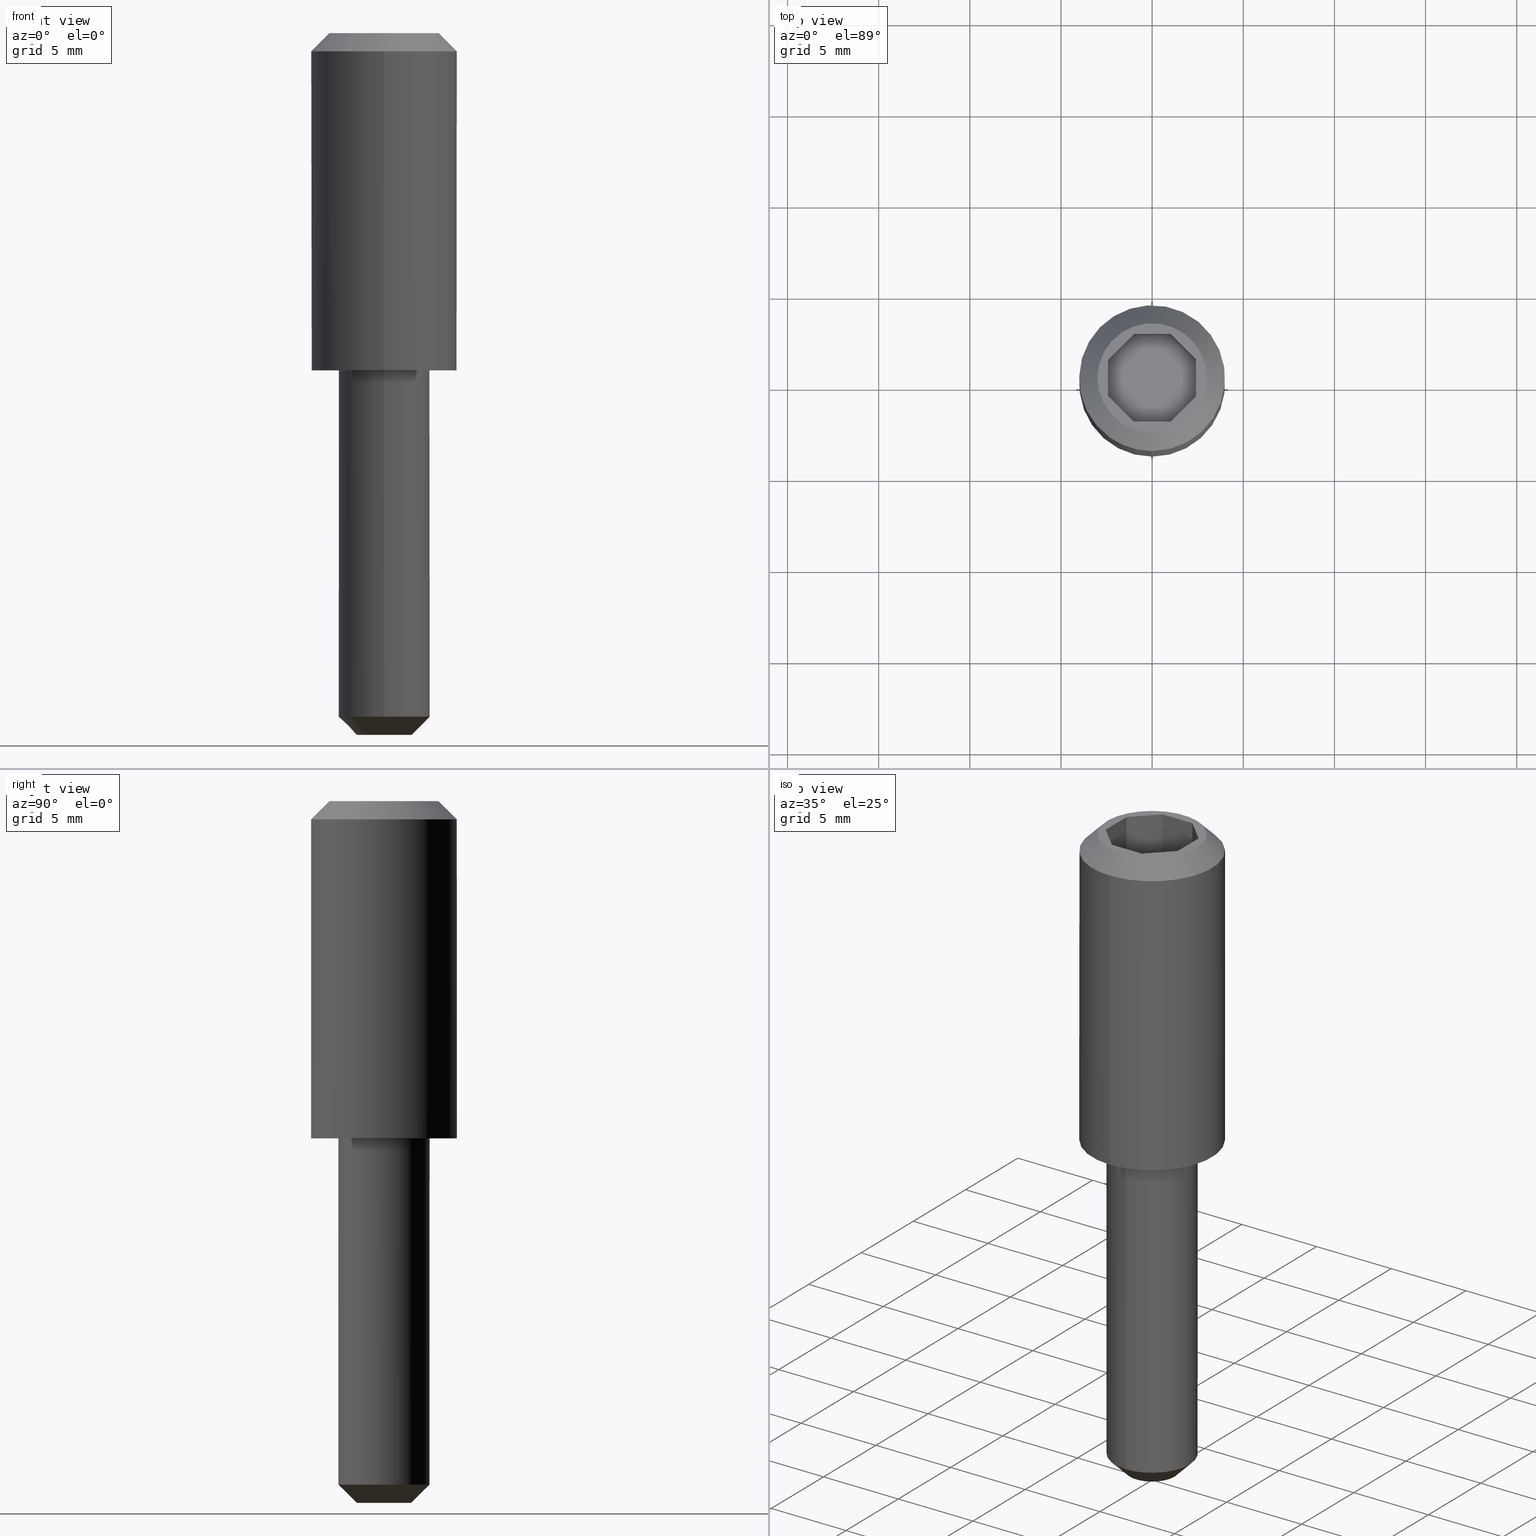
[diagram: canonical four-view strip — front | top / right | iso, engineering-drawing reading convention]
A machine part, canonical four-view strip (front | top / right | iso — engineering-drawing reading convention). The complete STEP part file that produces these views, byte-faithful:
ISO-10303-21;
HEADER;
/* Generated by software containing ST-Developer
 * from STEP Tools, Inc. (www.steptools.com) 
 */

FILE_DESCRIPTION(
/* description */ ('VITE M5 TESTA LUNGA D.8X38,5 AVP ZN'),
/* implementation_level */ '2;1');

FILE_NAME(
/* name */ 
'C:\\Users\\tecnico7\\Desktop\\NUOVI DISEGNI 3D\\CVIXX0000008.stp',
/* time_stamp */ '2022-12-05T09:24:14+01:00',
/* author */ ('tecnico7'),
/* organization */ (''),
/* preprocessor_version */ 'ST-DEVELOPER v18.1',
/* originating_system */ 'Autodesk Inventor 2022',
/* authorisation */ '');

FILE_SCHEMA (('AUTOMOTIVE_DESIGN { 1 0 10303 214 3 1 1 }'));
ENDSEC;

DATA;
#10=MECHANICAL_DESIGN_GEOMETRIC_PRESENTATION_REPRESENTATION('',(#13),#484);
#11=SHAPE_REPRESENTATION_RELATIONSHIP('SRR','None',#491,#12);
#12=ADVANCED_BREP_SHAPE_REPRESENTATION('',(#14),#483);
#13=STYLED_ITEM('',(#500),#14);
#14=MANIFOLD_SOLID_BREP('Importato1',#279);
#15=FACE_BOUND('',#52,.T.);
#16=FACE_BOUND('',#54,.T.);
#17=PLANE('',#314);
#18=PLANE('',#315);
#19=PLANE('',#316);
#20=PLANE('',#317);
#21=PLANE('',#318);
#22=PLANE('',#319);
#23=PLANE('',#320);
#24=PLANE('',#321);
#25=PLANE('',#322);
#26=PLANE('',#323);
#27=PLANE('',#324);
#28=PLANE('',#325);
#29=CYLINDRICAL_SURFACE('',#310,2.5);
#30=CYLINDRICAL_SURFACE('',#312,4.);
#31=FACE_OUTER_BOUND('',#47,.T.);
#32=FACE_OUTER_BOUND('',#48,.T.);
#33=FACE_OUTER_BOUND('',#49,.T.);
#34=FACE_OUTER_BOUND('',#50,.T.);
#35=FACE_OUTER_BOUND('',#51,.T.);
#36=FACE_OUTER_BOUND('',#53,.T.);
#37=FACE_OUTER_BOUND('',#55,.T.);
#38=FACE_OUTER_BOUND('',#56,.T.);
#39=FACE_OUTER_BOUND('',#57,.T.);
#40=FACE_OUTER_BOUND('',#58,.T.);
#41=FACE_OUTER_BOUND('',#59,.T.);
#42=FACE_OUTER_BOUND('',#60,.T.);
#43=FACE_OUTER_BOUND('',#61,.T.);
#44=FACE_OUTER_BOUND('',#62,.T.);
#45=FACE_OUTER_BOUND('',#63,.T.);
#46=FACE_OUTER_BOUND('',#64,.T.);
#47=EDGE_LOOP('',(#189,#190,#191,#192,#193));
#48=EDGE_LOOP('',(#194,#195,#196,#197,#198));
#49=EDGE_LOOP('',(#199,#200,#201,#202,#203));
#50=EDGE_LOOP('',(#204,#205,#206,#207,#208));
#51=EDGE_LOOP('',(#209));
#52=EDGE_LOOP('',(#210,#211,#212,#213,#214,#215,#216,#217));
#53=EDGE_LOOP('',(#218));
#54=EDGE_LOOP('',(#219));
#55=EDGE_LOOP('',(#220));
#56=EDGE_LOOP('',(#221,#222,#223,#224));
#57=EDGE_LOOP('',(#225,#226,#227,#228));
#58=EDGE_LOOP('',(#229,#230,#231,#232));
#59=EDGE_LOOP('',(#233,#234,#235,#236));
#60=EDGE_LOOP('',(#237,#238,#239,#240));
#61=EDGE_LOOP('',(#241,#242,#243,#244));
#62=EDGE_LOOP('',(#245,#246,#247,#248));
#63=EDGE_LOOP('',(#249,#250,#251,#252));
#64=EDGE_LOOP('',(#253,#254,#255,#256,#257,#258,#259,#260));
#65=LINE('',#410,#93);
#66=LINE('',#417,#94);
#67=LINE('',#424,#95);
#68=LINE('',#427,#96);
#69=LINE('',#432,#97);
#70=LINE('',#434,#98);
#71=LINE('',#436,#99);
#72=LINE('',#438,#100);
#73=LINE('',#440,#101);
#74=LINE('',#442,#102);
#75=LINE('',#444,#103);
#76=LINE('',#445,#104);
#77=LINE('',#450,#105);
#78=LINE('',#452,#106);
#79=LINE('',#453,#107);
#80=LINE('',#456,#108);
#81=LINE('',#457,#109);
#82=LINE('',#460,#110);
#83=LINE('',#461,#111);
#84=LINE('',#464,#112);
#85=LINE('',#465,#113);
#86=LINE('',#468,#114);
#87=LINE('',#469,#115);
#88=LINE('',#472,#116);
#89=LINE('',#473,#117);
#90=LINE('',#476,#118);
#91=LINE('',#477,#119);
#92=LINE('',#479,#120);
#93=VECTOR('',#332,0.2625);
#94=VECTOR('',#341,0.420000000000002);
#95=VECTOR('',#350,2.5);
#96=VECTOR('',#353,4.);
#97=VECTOR('',#358,2.);
#98=VECTOR('',#359,2.);
#99=VECTOR('',#360,2.00000000000001);
#100=VECTOR('',#361,2.);
#101=VECTOR('',#362,2.00000000000001);
#102=VECTOR('',#363,2.);
#103=VECTOR('',#364,2.00000000000001);
#104=VECTOR('',#365,2.);
#105=VECTOR('',#372,3.);
#106=VECTOR('',#373,2.);
#107=VECTOR('',#374,3.);
#108=VECTOR('',#377,2.00000000000001);
#109=VECTOR('',#378,3.);
#110=VECTOR('',#381,2.);
#111=VECTOR('',#382,3.);
#112=VECTOR('',#385,2.00000000000001);
#113=VECTOR('',#386,3.);
#114=VECTOR('',#389,2.);
#115=VECTOR('',#390,3.);
#116=VECTOR('',#393,2.00000000000001);
#117=VECTOR('',#394,3.);
#118=VECTOR('',#397,2.);
#119=VECTOR('',#398,3.);
#120=VECTOR('',#401,2.00000000000001);
#121=CIRCLE('',#303,2.5);
#122=CIRCLE('',#304,1.5);
#123=CIRCLE('',#305,2.5);
#124=CIRCLE('',#307,3.);
#125=CIRCLE('',#308,4.);
#126=CIRCLE('',#309,4.);
#127=CIRCLE('',#311,2.5);
#128=CIRCLE('',#313,4.);
#129=VERTEX_POINT('',#406);
#130=VERTEX_POINT('',#407);
#131=VERTEX_POINT('',#409);
#132=VERTEX_POINT('',#414);
#133=VERTEX_POINT('',#416);
#134=VERTEX_POINT('',#418);
#135=VERTEX_POINT('',#422);
#136=VERTEX_POINT('',#426);
#137=VERTEX_POINT('',#430);
#138=VERTEX_POINT('',#431);
#139=VERTEX_POINT('',#433);
#140=VERTEX_POINT('',#435);
#141=VERTEX_POINT('',#437);
#142=VERTEX_POINT('',#439);
#143=VERTEX_POINT('',#441);
#144=VERTEX_POINT('',#443);
#145=VERTEX_POINT('',#449);
#146=VERTEX_POINT('',#451);
#147=VERTEX_POINT('',#455);
#148=VERTEX_POINT('',#459);
#149=VERTEX_POINT('',#463);
#150=VERTEX_POINT('',#467);
#151=VERTEX_POINT('',#471);
#152=VERTEX_POINT('',#475);
#153=EDGE_CURVE('',#129,#130,#121,.T.);
#154=EDGE_CURVE('',#129,#131,#65,.T.);
#155=EDGE_CURVE('',#131,#131,#122,.T.);
#156=EDGE_CURVE('',#130,#129,#123,.T.);
#157=EDGE_CURVE('',#132,#132,#124,.T.);
#158=EDGE_CURVE('',#132,#133,#66,.T.);
#159=EDGE_CURVE('',#134,#133,#125,.T.);
#160=EDGE_CURVE('',#133,#134,#126,.T.);
#161=EDGE_CURVE('',#135,#135,#127,.T.);
#162=EDGE_CURVE('',#135,#130,#67,.T.);
#163=EDGE_CURVE('',#134,#136,#68,.T.);
#164=EDGE_CURVE('',#136,#136,#128,.T.);
#165=EDGE_CURVE('',#137,#138,#69,.T.);
#166=EDGE_CURVE('',#138,#139,#70,.T.);
#167=EDGE_CURVE('',#139,#140,#71,.T.);
#168=EDGE_CURVE('',#140,#141,#72,.T.);
#169=EDGE_CURVE('',#141,#142,#73,.T.);
#170=EDGE_CURVE('',#142,#143,#74,.T.);
#171=EDGE_CURVE('',#143,#144,#75,.T.);
#172=EDGE_CURVE('',#144,#137,#76,.T.);
#173=EDGE_CURVE('',#145,#138,#77,.T.);
#174=EDGE_CURVE('',#145,#146,#78,.T.);
#175=EDGE_CURVE('',#146,#139,#79,.T.);
#176=EDGE_CURVE('',#146,#147,#80,.T.);
#177=EDGE_CURVE('',#147,#140,#81,.T.);
#178=EDGE_CURVE('',#147,#148,#82,.T.);
#179=EDGE_CURVE('',#148,#141,#83,.T.);
#180=EDGE_CURVE('',#148,#149,#84,.T.);
#181=EDGE_CURVE('',#149,#142,#85,.T.);
#182=EDGE_CURVE('',#149,#150,#86,.T.);
#183=EDGE_CURVE('',#150,#143,#87,.T.);
#184=EDGE_CURVE('',#150,#151,#88,.T.);
#185=EDGE_CURVE('',#151,#144,#89,.T.);
#186=EDGE_CURVE('',#151,#152,#90,.T.);
#187=EDGE_CURVE('',#152,#137,#91,.T.);
#188=EDGE_CURVE('',#152,#145,#92,.T.);
#189=ORIENTED_EDGE('',*,*,#153,.F.);
#190=ORIENTED_EDGE('',*,*,#154,.T.);
#191=ORIENTED_EDGE('',*,*,#155,.F.);
#192=ORIENTED_EDGE('',*,*,#154,.F.);
#193=ORIENTED_EDGE('',*,*,#156,.F.);
#194=ORIENTED_EDGE('',*,*,#157,.F.);
#195=ORIENTED_EDGE('',*,*,#158,.T.);
#196=ORIENTED_EDGE('',*,*,#159,.F.);
#197=ORIENTED_EDGE('',*,*,#160,.F.);
#198=ORIENTED_EDGE('',*,*,#158,.F.);
#199=ORIENTED_EDGE('',*,*,#161,.F.);
#200=ORIENTED_EDGE('',*,*,#162,.T.);
#201=ORIENTED_EDGE('',*,*,#156,.T.);
#202=ORIENTED_EDGE('',*,*,#153,.T.);
#203=ORIENTED_EDGE('',*,*,#162,.F.);
#204=ORIENTED_EDGE('',*,*,#160,.T.);
#205=ORIENTED_EDGE('',*,*,#163,.T.);
#206=ORIENTED_EDGE('',*,*,#164,.T.);
#207=ORIENTED_EDGE('',*,*,#163,.F.);
#208=ORIENTED_EDGE('',*,*,#159,.T.);
#209=ORIENTED_EDGE('',*,*,#157,.T.);
#210=ORIENTED_EDGE('',*,*,#165,.T.);
#211=ORIENTED_EDGE('',*,*,#166,.T.);
#212=ORIENTED_EDGE('',*,*,#167,.T.);
#213=ORIENTED_EDGE('',*,*,#168,.T.);
#214=ORIENTED_EDGE('',*,*,#169,.T.);
#215=ORIENTED_EDGE('',*,*,#170,.T.);
#216=ORIENTED_EDGE('',*,*,#171,.T.);
#217=ORIENTED_EDGE('',*,*,#172,.T.);
#218=ORIENTED_EDGE('',*,*,#164,.F.);
#219=ORIENTED_EDGE('',*,*,#161,.T.);
#220=ORIENTED_EDGE('',*,*,#155,.T.);
#221=ORIENTED_EDGE('',*,*,#166,.F.);
#222=ORIENTED_EDGE('',*,*,#173,.F.);
#223=ORIENTED_EDGE('',*,*,#174,.T.);
#224=ORIENTED_EDGE('',*,*,#175,.T.);
#225=ORIENTED_EDGE('',*,*,#167,.F.);
#226=ORIENTED_EDGE('',*,*,#175,.F.);
#227=ORIENTED_EDGE('',*,*,#176,.T.);
#228=ORIENTED_EDGE('',*,*,#177,.T.);
#229=ORIENTED_EDGE('',*,*,#168,.F.);
#230=ORIENTED_EDGE('',*,*,#177,.F.);
#231=ORIENTED_EDGE('',*,*,#178,.T.);
#232=ORIENTED_EDGE('',*,*,#179,.T.);
#233=ORIENTED_EDGE('',*,*,#169,.F.);
#234=ORIENTED_EDGE('',*,*,#179,.F.);
#235=ORIENTED_EDGE('',*,*,#180,.T.);
#236=ORIENTED_EDGE('',*,*,#181,.T.);
#237=ORIENTED_EDGE('',*,*,#170,.F.);
#238=ORIENTED_EDGE('',*,*,#181,.F.);
#239=ORIENTED_EDGE('',*,*,#182,.T.);
#240=ORIENTED_EDGE('',*,*,#183,.T.);
#241=ORIENTED_EDGE('',*,*,#171,.F.);
#242=ORIENTED_EDGE('',*,*,#183,.F.);
#243=ORIENTED_EDGE('',*,*,#184,.T.);
#244=ORIENTED_EDGE('',*,*,#185,.T.);
#245=ORIENTED_EDGE('',*,*,#172,.F.);
#246=ORIENTED_EDGE('',*,*,#185,.F.);
#247=ORIENTED_EDGE('',*,*,#186,.T.);
#248=ORIENTED_EDGE('',*,*,#187,.T.);
#249=ORIENTED_EDGE('',*,*,#165,.F.);
#250=ORIENTED_EDGE('',*,*,#187,.F.);
#251=ORIENTED_EDGE('',*,*,#188,.T.);
#252=ORIENTED_EDGE('',*,*,#173,.T.);
#253=ORIENTED_EDGE('',*,*,#174,.F.);
#254=ORIENTED_EDGE('',*,*,#188,.F.);
#255=ORIENTED_EDGE('',*,*,#186,.F.);
#256=ORIENTED_EDGE('',*,*,#184,.F.);
#257=ORIENTED_EDGE('',*,*,#182,.F.);
#258=ORIENTED_EDGE('',*,*,#180,.F.);
#259=ORIENTED_EDGE('',*,*,#178,.F.);
#260=ORIENTED_EDGE('',*,*,#176,.F.);
#261=CONICAL_SURFACE('',#302,0.2625,0.785398163397448);
#262=CONICAL_SURFACE('',#306,0.420000000000002,0.785398163397447);
#263=ADVANCED_FACE('',(#31),#261,.T.);
#264=ADVANCED_FACE('',(#32),#262,.T.);
#265=ADVANCED_FACE('',(#33),#29,.T.);
#266=ADVANCED_FACE('',(#34),#30,.T.);
#267=ADVANCED_FACE('',(#35,#15),#17,.T.);
#268=ADVANCED_FACE('',(#36,#16),#18,.F.);
#269=ADVANCED_FACE('',(#37),#19,.F.);
#270=ADVANCED_FACE('',(#38),#20,.T.);
#271=ADVANCED_FACE('',(#39),#21,.T.);
#272=ADVANCED_FACE('',(#40),#22,.T.);
#273=ADVANCED_FACE('',(#41),#23,.T.);
#274=ADVANCED_FACE('',(#42),#24,.T.);
#275=ADVANCED_FACE('',(#43),#25,.T.);
#276=ADVANCED_FACE('',(#44),#26,.T.);
#277=ADVANCED_FACE('',(#45),#27,.T.);
#278=ADVANCED_FACE('',(#46),#28,.T.);
#279=CLOSED_SHELL('',(#263,#264,#265,#266,#267,#268,#269,#270,#271,#272,
#273,#274,#275,#276,#277,#278));
#280=DERIVED_UNIT_ELEMENT(#283,1.);
#281=DERIVED_UNIT_ELEMENT(#486,-3.);
#282=DIMENSIONAL_EXPONENTS(1.,0.,0.,0.,0.,0.,0.);
#283=(
CONVERSION_BASED_UNIT('gram',#285)
MASS_UNIT()
NAMED_UNIT(#282)
);
#284=(
MASS_UNIT()
NAMED_UNIT(*)
SI_UNIT(.KILO.,.GRAM.)
);
#285=MASS_MEASURE_WITH_UNIT(MASS_MEASURE(0.001),#284);
#286=DERIVED_UNIT((#280,#281));
#287=MEASURE_REPRESENTATION_ITEM('density measure',
POSITIVE_RATIO_MEASURE(7.9),#286);
#288=PROPERTY_DEFINITION_REPRESENTATION(#293,#290);
#289=PROPERTY_DEFINITION_REPRESENTATION(#294,#291);
#290=REPRESENTATION('material name',(#292),#483);
#291=REPRESENTATION('density',(#287),#483);
#292=DESCRIPTIVE_REPRESENTATION_ITEM('Acciaio AVP','Acciaio AVP');
#293=PROPERTY_DEFINITION('material property','material name',#493);
#294=PROPERTY_DEFINITION('material property','density of part',#493);
#295=DATE_TIME_ROLE('creation_date');
#296=APPLIED_DATE_AND_TIME_ASSIGNMENT(#297,#295,(#493));
#297=DATE_AND_TIME(#298,#299);
#298=CALENDAR_DATE(2012,13,1);
#299=LOCAL_TIME(0,0,0.,#300);
#300=COORDINATED_UNIVERSAL_TIME_OFFSET(0,0,.BEHIND.);
#301=AXIS2_PLACEMENT_3D('placement',#404,#326,#327);
#302=AXIS2_PLACEMENT_3D('',#405,#328,#329);
#303=AXIS2_PLACEMENT_3D('',#408,#330,#331);
#304=AXIS2_PLACEMENT_3D('',#411,#333,#334);
#305=AXIS2_PLACEMENT_3D('',#412,#335,#336);
#306=AXIS2_PLACEMENT_3D('',#413,#337,#338);
#307=AXIS2_PLACEMENT_3D('',#415,#339,#340);
#308=AXIS2_PLACEMENT_3D('',#419,#342,#343);
#309=AXIS2_PLACEMENT_3D('',#420,#344,#345);
#310=AXIS2_PLACEMENT_3D('',#421,#346,#347);
#311=AXIS2_PLACEMENT_3D('',#423,#348,#349);
#312=AXIS2_PLACEMENT_3D('',#425,#351,#352);
#313=AXIS2_PLACEMENT_3D('',#428,#354,#355);
#314=AXIS2_PLACEMENT_3D('',#429,#356,#357);
#315=AXIS2_PLACEMENT_3D('',#446,#366,#367);
#316=AXIS2_PLACEMENT_3D('',#447,#368,#369);
#317=AXIS2_PLACEMENT_3D('',#448,#370,#371);
#318=AXIS2_PLACEMENT_3D('',#454,#375,#376);
#319=AXIS2_PLACEMENT_3D('',#458,#379,#380);
#320=AXIS2_PLACEMENT_3D('',#462,#383,#384);
#321=AXIS2_PLACEMENT_3D('',#466,#387,#388);
#322=AXIS2_PLACEMENT_3D('',#470,#391,#392);
#323=AXIS2_PLACEMENT_3D('',#474,#395,#396);
#324=AXIS2_PLACEMENT_3D('',#478,#399,#400);
#325=AXIS2_PLACEMENT_3D('',#480,#402,#403);
#326=DIRECTION('axis',(0.,0.,1.));
#327=DIRECTION('refdir',(1.,0.,0.));
#328=DIRECTION('center_axis',(3.80063223752928E-16,2.80353548521089E-17,
1.));
#329=DIRECTION('ref_axis',(-0.581108581114918,0.813826036051075,1.98042098980449E-16));
#330=DIRECTION('center_axis',(0.,0.,1.));
#331=DIRECTION('ref_axis',(-1.,0.,0.));
#332=DIRECTION('',(-0.410905818312052,0.575461908797883,-0.707106781186548));
#333=DIRECTION('center_axis',(0.,0.,-1.));
#334=DIRECTION('ref_axis',(-1.,0.,0.));
#335=DIRECTION('center_axis',(0.,0.,1.));
#336=DIRECTION('ref_axis',(-1.,0.,0.));
#337=DIRECTION('center_axis',(-2.72717667159305E-16,-1.96537398351416E-16,
-1.));
#338=DIRECTION('ref_axis',(0.581108581114918,0.813826036051076,-3.18425828444038E-16));
#339=DIRECTION('center_axis',(0.,0.,1.));
#340=DIRECTION('ref_axis',(-1.,0.,0.));
#341=DIRECTION('',(-0.410905818312051,-0.575461908797883,-0.707106781186548));
#342=DIRECTION('center_axis',(0.,0.,-1.));
#343=DIRECTION('ref_axis',(-1.,0.,0.));
#344=DIRECTION('center_axis',(0.,0.,-1.));
#345=DIRECTION('ref_axis',(-1.,0.,0.));
#346=DIRECTION('center_axis',(0.,0.,1.));
#347=DIRECTION('ref_axis',(0.,1.,0.));
#348=DIRECTION('center_axis',(0.,0.,1.));
#349=DIRECTION('ref_axis',(0.,-1.,0.));
#350=DIRECTION('',(0.,0.,-1.));
#351=DIRECTION('center_axis',(0.,0.,1.));
#352=DIRECTION('ref_axis',(0.,1.,0.));
#353=DIRECTION('',(0.,0.,-1.));
#354=DIRECTION('center_axis',(0.,0.,1.));
#355=DIRECTION('ref_axis',(1.,0.,0.));
#356=DIRECTION('center_axis',(0.,0.,1.));
#357=DIRECTION('ref_axis',(1.,0.,0.));
#358=DIRECTION('',(-0.707106781186548,-0.707106781186547,0.));
#359=DIRECTION('',(-1.,0.,0.));
#360=DIRECTION('',(-0.707106781186547,0.707106781186548,0.));
#361=DIRECTION('',(0.,1.,0.));
#362=DIRECTION('',(0.707106781186548,0.707106781186547,0.));
#363=DIRECTION('',(1.,0.,0.));
#364=DIRECTION('',(0.707106781186547,-0.707106781186548,0.));
#365=DIRECTION('',(0.,-1.,0.));
#366=DIRECTION('center_axis',(0.,0.,1.));
#367=DIRECTION('ref_axis',(1.,0.,0.));
#368=DIRECTION('center_axis',(0.,0.,1.));
#369=DIRECTION('ref_axis',(1.,0.,0.));
#370=DIRECTION('center_axis',(0.,1.,0.));
#371=DIRECTION('ref_axis',(0.,0.,1.));
#372=DIRECTION('',(0.,0.,1.));
#373=DIRECTION('',(-1.,0.,0.));
#374=DIRECTION('',(0.,0.,1.));
#375=DIRECTION('center_axis',(0.707106781186548,0.707106781186547,-8.659561E-17));
#376=DIRECTION('ref_axis',(-1.22464686103971E-16,0.,-1.));
#377=DIRECTION('',(-0.707106781186547,0.707106781186548,0.));
#378=DIRECTION('',(0.,0.,1.));
#379=DIRECTION('center_axis',(1.,0.,0.));
#380=DIRECTION('ref_axis',(0.,0.,-1.));
#381=DIRECTION('',(0.,1.,0.));
#382=DIRECTION('',(0.,0.,1.));
#383=DIRECTION('center_axis',(0.707106781186547,-0.707106781186548,8.659561E-17));
#384=DIRECTION('ref_axis',(1.22464686103971E-16,0.,-1.));
#385=DIRECTION('',(0.707106781186548,0.707106781186548,0.));
#386=DIRECTION('',(0.,0.,1.));
#387=DIRECTION('center_axis',(0.,-1.,0.));
#388=DIRECTION('ref_axis',(0.,0.,-1.));
#389=DIRECTION('',(1.,0.,0.));
#390=DIRECTION('',(0.,0.,1.));
#391=DIRECTION('center_axis',(-0.707106781186547,-0.707106781186548,8.659561E-17));
#392=DIRECTION('ref_axis',(1.22464686103971E-16,0.,1.));
#393=DIRECTION('',(0.707106781186548,-0.707106781186547,0.));
#394=DIRECTION('',(0.,0.,1.));
#395=DIRECTION('center_axis',(-1.,0.,0.));
#396=DIRECTION('ref_axis',(0.,0.,1.));
#397=DIRECTION('',(0.,-1.,0.));
#398=DIRECTION('',(0.,0.,1.));
#399=DIRECTION('center_axis',(-0.707106781186548,0.707106781186547,-8.659561E-17));
#400=DIRECTION('ref_axis',(-1.22464686103971E-16,0.,1.));
#401=DIRECTION('',(-0.707106781186547,-0.707106781186548,0.));
#402=DIRECTION('center_axis',(0.,0.,1.));
#403=DIRECTION('ref_axis',(1.,0.,0.));
#404=CARTESIAN_POINT('',(0.,0.,0.));
#405=CARTESIAN_POINT('Origin',(-6.93889390390723E-17,-2.4980018054066E-15,
-21.2375));
#406=CARTESIAN_POINT('',(1.4527714527873,-2.03456509012769,-19.));
#407=CARTESIAN_POINT('',(3.06161699786839E-16,-2.5,-19.));
#408=CARTESIAN_POINT('Origin',(0.,-2.326829E-15,-19.));
#409=CARTESIAN_POINT('',(0.87166287167238,-1.22073905407662,-20.));
#410=CARTESIAN_POINT('',(0.152541002542666,-0.21362933446341,-21.2375));
#411=CARTESIAN_POINT('Origin',(0.,-2.449294E-15,-20.));
#412=CARTESIAN_POINT('Origin',(0.,-2.326829E-15,-19.));
#413=CARTESIAN_POINT('Origin',(2.42861286636753E-16,2.15105711021124E-15,
21.08));
#414=CARTESIAN_POINT('',(-1.74332574334476,-2.44147810815323,18.5));
#415=CARTESIAN_POINT('Origin',(0.,2.265597E-15,18.5));
#416=CARTESIAN_POINT('',(-2.32443432445968,-3.25530414420431,17.5));
#417=CARTESIAN_POINT('',(-0.244065604068266,-0.341806935141451,21.08));
#418=CARTESIAN_POINT('',(4.89858719658942E-16,-4.,17.5));
#419=CARTESIAN_POINT('Origin',(0.,2.143132E-15,17.5));
#420=CARTESIAN_POINT('Origin',(0.,2.143132E-15,17.5));
#421=CARTESIAN_POINT('Origin',(0.,-2.326829E-15,-19.00000001));
#422=CARTESIAN_POINT('',(3.06161699786839E-16,-2.5,0.));
#423=CARTESIAN_POINT('Origin',(0.,0.,0.));
#424=CARTESIAN_POINT('',(3.06161699786839E-16,-2.5,-19.00000001));
#425=CARTESIAN_POINT('Origin',(0.,-1.224647E-24,-1.E-8));
#426=CARTESIAN_POINT('',(4.89858719658942E-16,-4.,0.));
#427=CARTESIAN_POINT('',(4.89858719658942E-16,-4.,-1.E-8));
#428=CARTESIAN_POINT('Origin',(0.,0.,0.));
#429=CARTESIAN_POINT('Origin',(3.3,3.30000000000001,18.5));
#430=CARTESIAN_POINT('',(2.41421356237311,-0.999999999999998,18.5));
#431=CARTESIAN_POINT('',(1.,-2.41421356237308,18.5));
#432=CARTESIAN_POINT('',(2.4142135623731,-0.99999999999999,18.5));
#433=CARTESIAN_POINT('',(-1.,-2.41421356237309,18.5));
#434=CARTESIAN_POINT('',(1.,-2.41421356237309,18.5));
#435=CARTESIAN_POINT('',(-2.41421356237311,-0.999999999999998,18.5));
#436=CARTESIAN_POINT('',(-1.,-2.41421356237309,18.5));
#437=CARTESIAN_POINT('',(-2.41421356237311,1.,18.5));
#438=CARTESIAN_POINT('',(-2.41421356237311,-0.999999999999998,18.5));
#439=CARTESIAN_POINT('',(-1.,2.4142135623731,18.5));
#440=CARTESIAN_POINT('',(-2.4142135623731,0.999999999999994,18.5));
#441=CARTESIAN_POINT('',(1.,2.4142135623731,18.5));
#442=CARTESIAN_POINT('',(-1.,2.4142135623731,18.5));
#443=CARTESIAN_POINT('',(2.41421356237311,1.,18.5));
#444=CARTESIAN_POINT('',(1.00000000000001,2.4142135623731,18.5));
#445=CARTESIAN_POINT('',(2.41421356237311,1.,18.5));
#446=CARTESIAN_POINT('Origin',(4.40000000000003,4.40000000000001,-5.388446E-16));
#447=CARTESIAN_POINT('Origin',(1.65,1.65,-20.));
#448=CARTESIAN_POINT('Origin',(-1.1,-2.41421356237309,15.35));
#449=CARTESIAN_POINT('',(1.,-2.41421356237309,15.5));
#450=CARTESIAN_POINT('',(1.,-2.41421356237309,15.5));
#451=CARTESIAN_POINT('',(-1.,-2.41421356237309,15.5));
#452=CARTESIAN_POINT('',(1.,-2.41421356237309,15.5));
#453=CARTESIAN_POINT('',(-1.,-2.41421356237309,15.5));
#454=CARTESIAN_POINT('Origin',(-2.48492424049176,-0.929289321881336,18.65));
#455=CARTESIAN_POINT('',(-2.41421356237311,-0.999999999999998,15.5));
#456=CARTESIAN_POINT('',(-1.,-2.41421356237309,15.5));
#457=CARTESIAN_POINT('',(-2.41421356237311,-0.999999999999998,15.5));
#458=CARTESIAN_POINT('Origin',(-2.41421356237311,1.1,18.65));
#459=CARTESIAN_POINT('',(-2.41421356237311,1.,15.5));
#460=CARTESIAN_POINT('',(-2.41421356237311,-0.999999999999998,15.5));
#461=CARTESIAN_POINT('',(-2.41421356237311,1.,15.5));
#462=CARTESIAN_POINT('Origin',(-0.929289321881335,2.48492424049176,18.65));
#463=CARTESIAN_POINT('',(-1.,2.4142135623731,15.5));
#464=CARTESIAN_POINT('',(-2.4142135623731,0.999999999999994,15.5));
#465=CARTESIAN_POINT('',(-1.,2.4142135623731,15.5));
#466=CARTESIAN_POINT('Origin',(1.1,2.4142135623731,18.65));
#467=CARTESIAN_POINT('',(1.,2.4142135623731,15.5));
#468=CARTESIAN_POINT('',(-1.,2.4142135623731,15.5));
#469=CARTESIAN_POINT('',(1.,2.4142135623731,15.5));
#470=CARTESIAN_POINT('Origin',(2.48492424049177,0.929289321881348,18.65));
#471=CARTESIAN_POINT('',(2.41421356237311,1.,15.5));
#472=CARTESIAN_POINT('',(1.,2.4142135623731,15.5));
#473=CARTESIAN_POINT('',(2.41421356237311,1.,15.5));
#474=CARTESIAN_POINT('Origin',(2.41421356237311,-1.1,18.65));
#475=CARTESIAN_POINT('',(2.41421356237311,-0.999999999999998,15.5));
#476=CARTESIAN_POINT('',(2.41421356237311,1.,15.5));
#477=CARTESIAN_POINT('',(2.41421356237311,-0.999999999999998,15.5));
#478=CARTESIAN_POINT('Origin',(0.929289321881349,-2.48492424049175,18.65));
#479=CARTESIAN_POINT('',(2.4142135623731,-0.99999999999999,15.5));
#480=CARTESIAN_POINT('Origin',(2.65563491861042,2.65563491861041,15.5));
#481=UNCERTAINTY_MEASURE_WITH_UNIT(LENGTH_MEASURE(0.01),#485,
'DISTANCE_ACCURACY_VALUE',
'Maximum model space distance between geometric entities at asserted c
onnectivities');
#482=UNCERTAINTY_MEASURE_WITH_UNIT(LENGTH_MEASURE(0.01),#485,
'DISTANCE_ACCURACY_VALUE',
'Maximum model space distance between geometric entities at asserted c
onnectivities');
#483=(
GEOMETRIC_REPRESENTATION_CONTEXT(3)
GLOBAL_UNCERTAINTY_ASSIGNED_CONTEXT((#481))
GLOBAL_UNIT_ASSIGNED_CONTEXT((#485,#487,#488))
REPRESENTATION_CONTEXT('','3D')
);
#484=(
GEOMETRIC_REPRESENTATION_CONTEXT(3)
GLOBAL_UNCERTAINTY_ASSIGNED_CONTEXT((#482))
GLOBAL_UNIT_ASSIGNED_CONTEXT((#485,#487,#488))
REPRESENTATION_CONTEXT('','3D')
);
#485=(
LENGTH_UNIT()
NAMED_UNIT(*)
SI_UNIT(.MILLI.,.METRE.)
);
#486=(
LENGTH_UNIT()
NAMED_UNIT(*)
SI_UNIT(.CENTI.,.METRE.)
);
#487=(
NAMED_UNIT(*)
PLANE_ANGLE_UNIT()
SI_UNIT($,.RADIAN.)
);
#488=(
NAMED_UNIT(*)
SI_UNIT($,.STERADIAN.)
SOLID_ANGLE_UNIT()
);
#489=SHAPE_DEFINITION_REPRESENTATION(#490,#491);
#490=PRODUCT_DEFINITION_SHAPE('',$,#493);
#491=SHAPE_REPRESENTATION('',(#301),#483);
#492=PRODUCT_DEFINITION_CONTEXT('part definition',#497,'design');
#493=PRODUCT_DEFINITION('CVIXX0000008','CVIXX0000008',#494,#492);
#494=PRODUCT_DEFINITION_FORMATION('G',$,#499);
#495=PRODUCT_RELATED_PRODUCT_CATEGORY('CVIXX0000008','CVIXX0000008',(#499));
#496=APPLICATION_PROTOCOL_DEFINITION('international standard',
'automotive_design',2009,#497);
#497=APPLICATION_CONTEXT(
'Core Data for Automotive Mechanical Design Process');
#498=PRODUCT_CONTEXT('part definition',#497,'mechanical');
#499=PRODUCT('CVIXX0000008','CVIXX0000008',
'VITE M5 TESTA LUNGA D.8X38,5 AVP ZN',(#498));
#500=PRESENTATION_STYLE_ASSIGNMENT((#501));
#501=SURFACE_STYLE_USAGE(.BOTH.,#504);
#502=SURFACE_STYLE_RENDERING_WITH_PROPERTIES($,#508,(#503));
#503=SURFACE_STYLE_TRANSPARENT(0.);
#504=SURFACE_SIDE_STYLE('',(#505,#502));
#505=SURFACE_STYLE_FILL_AREA(#506);
#506=FILL_AREA_STYLE('',(#507));
#507=FILL_AREA_STYLE_COLOUR('',#508);
#508=COLOUR_RGB('',0.83921568627451,0.886274509803922,0.854901960784314);
ENDSEC;
END-ISO-10303-21;
